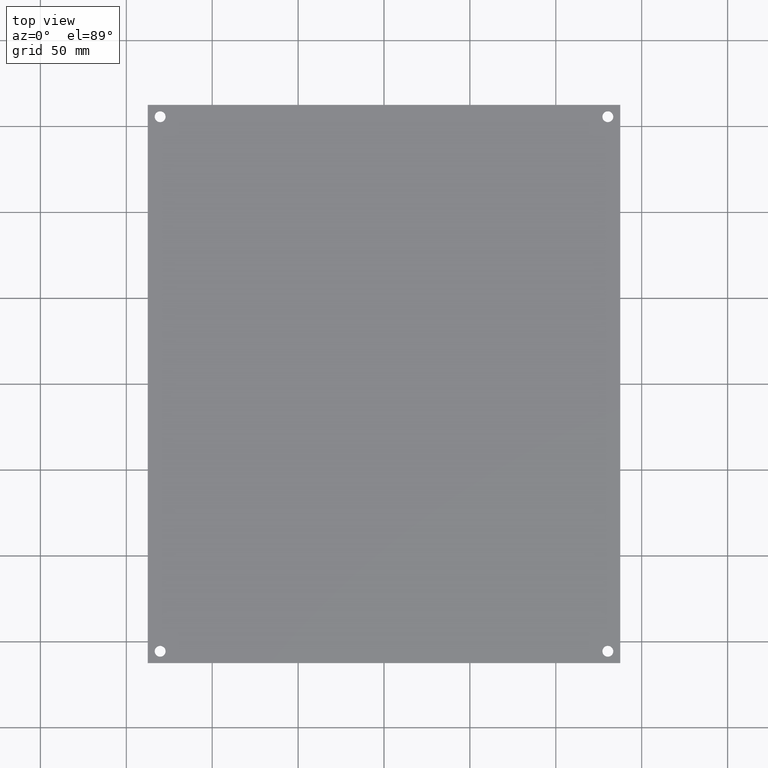
[diagram: clean part render]
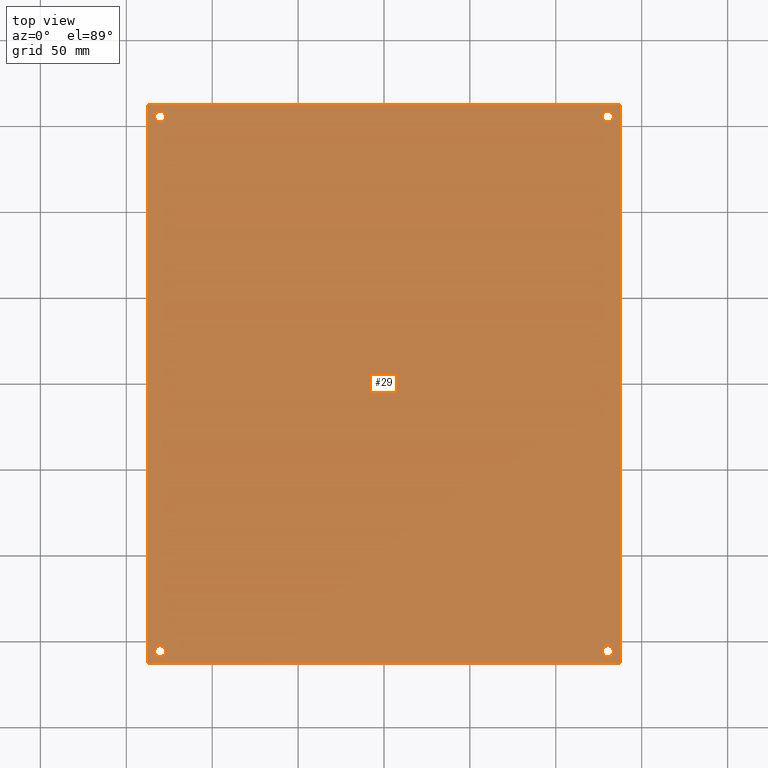
[diagram: same view with one face highlighted and labeled with its STEP entity id]
A machine part, top view. The second image highlights one B-rep face of the part: STEP entity #29.
In plain terms, the highlighted planar face has unit normal (-0, 0, 1).
Its self-contained STEP definition (entity closure, byte-faithful):
#1 = EDGE_CURVE ( 'NONE', #2, #3, #235, .T. ) ;
#2 = VERTEX_POINT ( 'NONE', #230 ) ;
#3 = VERTEX_POINT ( 'NONE', #229 ) ;
#7 = VERTEX_POINT ( 'NONE', #94 ) ;
#12 = VERTEX_POINT ( 'NONE', #84 ) ;
#15 = EDGE_CURVE ( 'NONE', #12, #7, #79, .T. ) ;
#28 = ORIENTED_EDGE ( 'NONE', *, *, #62, .F. ) ;
#29 = ADVANCED_FACE ( 'NONE', ( #182, #181, #180, #179, #178 ), #177, .T. ) ;
#30 = EDGE_LOOP ( 'NONE', ( #28, #66 ) ) ;
#31 = ORIENTED_EDGE ( 'NONE', *, *, #34, .T. ) ;
#32 = EDGE_CURVE ( 'NONE', #7, #12, #171, .T. ) ;
#33 = EDGE_CURVE ( 'NONE', #64, #63, #324, .T. ) ;
#34 = EDGE_CURVE ( 'NONE', #71, #74, #320, .T. ) ;
#35 = VERTEX_POINT ( 'NONE', #316 ) ;
#47 = EDGE_CURVE ( 'NONE', #48, #49, #228, .T. ) ;
#48 = VERTEX_POINT ( 'NONE', #223 ) ;
#49 = VERTEX_POINT ( 'NONE', #222 ) ;
#62 = EDGE_CURVE ( 'NONE', #63, #64, #113, .T. ) ;
#63 = VERTEX_POINT ( 'NONE', #103 ) ;
#64 = VERTEX_POINT ( 'NONE', #102 ) ;
#66 = ORIENTED_EDGE ( 'NONE', *, *, #33, .F. ) ;
#67 = ORIENTED_EDGE ( 'NONE', *, *, #154, .T. ) ;
#68 = EDGE_CURVE ( 'NONE', #35, #71, #101, .T. ) ;
#69 = ORIENTED_EDGE ( 'NONE', *, *, #15, .F. ) ;
#70 = EDGE_LOOP ( 'NONE', ( #69, #73 ) ) ;
#71 = VERTEX_POINT ( 'NONE', #360 ) ;
#72 = EDGE_LOOP ( 'NONE', ( #67, #144, #31, #145 ) ) ;
#73 = ORIENTED_EDGE ( 'NONE', *, *, #32, .F. ) ;
#74 = VERTEX_POINT ( 'NONE', #359 ) ;
#75 = DIRECTION ( 'NONE',  ( 1.000000000000000000, 0.0000000000000000000, 0.0000000000000000000 ) ) ;
#76 = DIRECTION ( 'NONE',  ( 0.0000000000000000000, 0.0000000000000000000, 1.000000000000000000 ) ) ;
#77 = CARTESIAN_POINT ( 'NONE',  ( -130.3000000000000100, 155.5999999999999900, 2.000000000000000000 ) ) ;
#78 = AXIS2_PLACEMENT_3D ( 'NONE', #77, #76, #75 ) ;
#79 = CIRCLE ( 'NONE', #78, 3.175000000000011400 ) ;
#84 = CARTESIAN_POINT ( 'NONE',  ( -133.4750000000000200, 155.5999999999999900, 2.000000000000000000 ) ) ;
#94 = CARTESIAN_POINT ( 'NONE',  ( -127.1249999999999900, 155.5999999999999900, 2.000000000000000000 ) ) ;
#100 = CARTESIAN_POINT ( 'NONE',  ( -137.5000000000000000, -162.5000000000000000, 2.000000000000000000 ) ) ;
#101 = LINE ( 'NONE', #100, #400 ) ;
#102 = CARTESIAN_POINT ( 'NONE',  ( 133.4750000000000200, -155.5999999999999900, 2.000000000000000000 ) ) ;
#103 = CARTESIAN_POINT ( 'NONE',  ( 127.1249999999999900, -155.5999999999999900, 2.000000000000000000 ) ) ;
#104 = DIRECTION ( 'NONE',  ( 1.000000000000000000, 0.0000000000000000000, 0.0000000000000000000 ) ) ;
#105 = DIRECTION ( 'NONE',  ( 0.0000000000000000000, 0.0000000000000000000, 1.000000000000000000 ) ) ;
#106 = CARTESIAN_POINT ( 'NONE',  ( 130.3000000000000100, -155.5999999999999900, 2.000000000000000000 ) ) ;
#107 = AXIS2_PLACEMENT_3D ( 'NONE', #106, #105, #104 ) ;
#113 = CIRCLE ( 'NONE', #107, 3.175000000000011400 ) ;
#144 = ORIENTED_EDGE ( 'NONE', *, *, #68, .T. ) ;
#145 = ORIENTED_EDGE ( 'NONE', *, *, #146, .T. ) ;
#146 = EDGE_CURVE ( 'NONE', #74, #153, #437, .T. ) ;
#147 = EDGE_LOOP ( 'NONE', ( #148, #149 ) ) ;
#148 = ORIENTED_EDGE ( 'NONE', *, *, #47, .F. ) ;
#149 = ORIENTED_EDGE ( 'NONE', *, *, #150, .F. ) ;
#150 = EDGE_CURVE ( 'NONE', #49, #48, #433, .T. ) ;
#151 = EDGE_LOOP ( 'NONE', ( #152, #155 ) ) ;
#152 = ORIENTED_EDGE ( 'NONE', *, *, #1, .F. ) ;
#153 = VERTEX_POINT ( 'NONE', #428 ) ;
#154 = EDGE_CURVE ( 'NONE', #153, #35, #427, .T. ) ;
#155 = ORIENTED_EDGE ( 'NONE', *, *, #156, .F. ) ;
#156 = EDGE_CURVE ( 'NONE', #3, #2, #423, .T. ) ;
#167 = DIRECTION ( 'NONE',  ( 1.000000000000000000, 0.0000000000000000000, 0.0000000000000000000 ) ) ;
#168 = DIRECTION ( 'NONE',  ( 0.0000000000000000000, 0.0000000000000000000, 1.000000000000000000 ) ) ;
#169 = CARTESIAN_POINT ( 'NONE',  ( -130.3000000000000100, 155.5999999999999900, 2.000000000000000000 ) ) ;
#170 = AXIS2_PLACEMENT_3D ( 'NONE', #169, #168, #167 ) ;
#171 = CIRCLE ( 'NONE', #170, 3.175000000000011400 ) ;
#172 = CARTESIAN_POINT ( 'NONE',  ( 130.3000000000000100, -155.5999999999999900, 2.000000000000000000 ) ) ;
#173 = DIRECTION ( 'NONE',  ( 1.000000000000000000, 0.0000000000000000000, 0.0000000000000000000 ) ) ;
#174 = DIRECTION ( 'NONE',  ( -0.0000000000000000000, 0.0000000000000000000, 1.000000000000000000 ) ) ;
#175 = CARTESIAN_POINT ( 'NONE',  ( -137.5000000000000000, -162.5000000000000000, 2.000000000000000000 ) ) ;
#176 = AXIS2_PLACEMENT_3D ( 'NONE', #175, #174, #173 ) ;
#177 = PLANE ( 'NONE',  #176 ) ;
#178 = FACE_BOUND ( 'NONE', #151, .T. ) ;
#179 = FACE_BOUND ( 'NONE', #147, .T. ) ;
#180 = FACE_OUTER_BOUND ( 'NONE', #72, .T. ) ;
#181 = FACE_BOUND ( 'NONE', #70, .T. ) ;
#182 = FACE_BOUND ( 'NONE', #30, .T. ) ;
#222 = CARTESIAN_POINT ( 'NONE',  ( 133.4750000000000200, 155.5999999999999900, 2.000000000000000000 ) ) ;
#223 = CARTESIAN_POINT ( 'NONE',  ( 127.1249999999999900, 155.5999999999999900, 2.000000000000000000 ) ) ;
#224 = DIRECTION ( 'NONE',  ( 1.000000000000000000, 0.0000000000000000000, 0.0000000000000000000 ) ) ;
#225 = DIRECTION ( 'NONE',  ( 0.0000000000000000000, 0.0000000000000000000, 1.000000000000000000 ) ) ;
#226 = CARTESIAN_POINT ( 'NONE',  ( 130.3000000000000100, 155.5999999999999900, 2.000000000000000000 ) ) ;
#227 = AXIS2_PLACEMENT_3D ( 'NONE', #226, #225, #224 ) ;
#228 = CIRCLE ( 'NONE', #227, 3.175000000000011400 ) ;
#229 = CARTESIAN_POINT ( 'NONE',  ( -127.1249999999999900, -155.5999999999999900, 2.000000000000000000 ) ) ;
#230 = CARTESIAN_POINT ( 'NONE',  ( -133.4750000000000200, -155.5999999999999900, 2.000000000000000000 ) ) ;
#231 = DIRECTION ( 'NONE',  ( 1.000000000000000000, 0.0000000000000000000, 0.0000000000000000000 ) ) ;
#232 = DIRECTION ( 'NONE',  ( 0.0000000000000000000, 0.0000000000000000000, 1.000000000000000000 ) ) ;
#233 = CARTESIAN_POINT ( 'NONE',  ( -130.3000000000000100, -155.5999999999999900, 2.000000000000000000 ) ) ;
#234 = AXIS2_PLACEMENT_3D ( 'NONE', #233, #232, #231 ) ;
#235 = CIRCLE ( 'NONE', #234, 3.175000000000011400 ) ;
#316 = CARTESIAN_POINT ( 'NONE',  ( -137.5000000000000000, -162.5000000000000000, 2.000000000000000000 ) ) ;
#317 = DIRECTION ( 'NONE',  ( -0.0000000000000000000, 1.000000000000000000, -0.0000000000000000000 ) ) ;
#318 = VECTOR ( 'NONE', #317, 1000.000000000000000 ) ;
#319 = CARTESIAN_POINT ( 'NONE',  ( 137.5000000000000000, 162.5000000000000000, 2.000000000000000000 ) ) ;
#320 = LINE ( 'NONE', #319, #318 ) ;
#321 = DIRECTION ( 'NONE',  ( 1.000000000000000000, 0.0000000000000000000, 0.0000000000000000000 ) ) ;
#322 = DIRECTION ( 'NONE',  ( 0.0000000000000000000, 0.0000000000000000000, 1.000000000000000000 ) ) ;
#323 = AXIS2_PLACEMENT_3D ( 'NONE', #172, #322, #321 ) ;
#324 = CIRCLE ( 'NONE', #323, 3.175000000000011400 ) ;
#359 = CARTESIAN_POINT ( 'NONE',  ( 137.5000000000000000, 162.5000000000000000, 2.000000000000000000 ) ) ;
#360 = CARTESIAN_POINT ( 'NONE',  ( 137.5000000000000000, -162.5000000000000000, 2.000000000000000000 ) ) ;
#381 = DIRECTION ( 'NONE',  ( 1.000000000000000000, 0.0000000000000000000, 0.0000000000000000000 ) ) ;
#400 = VECTOR ( 'NONE', #381, 1000.000000000000000 ) ;
#419 = DIRECTION ( 'NONE',  ( 1.000000000000000000, 0.0000000000000000000, 0.0000000000000000000 ) ) ;
#420 = DIRECTION ( 'NONE',  ( 0.0000000000000000000, 0.0000000000000000000, 1.000000000000000000 ) ) ;
#421 = CARTESIAN_POINT ( 'NONE',  ( -130.3000000000000100, -155.5999999999999900, 2.000000000000000000 ) ) ;
#422 = AXIS2_PLACEMENT_3D ( 'NONE', #421, #420, #419 ) ;
#423 = CIRCLE ( 'NONE', #422, 3.175000000000011400 ) ;
#424 = DIRECTION ( 'NONE',  ( 0.0000000000000000000, -1.000000000000000000, 0.0000000000000000000 ) ) ;
#425 = VECTOR ( 'NONE', #424, 1000.000000000000000 ) ;
#426 = CARTESIAN_POINT ( 'NONE',  ( -137.5000000000000000, 162.5000000000000000, 2.000000000000000000 ) ) ;
#427 = LINE ( 'NONE', #426, #425 ) ;
#428 = CARTESIAN_POINT ( 'NONE',  ( -137.5000000000000000, 162.5000000000000000, 2.000000000000000000 ) ) ;
#429 = DIRECTION ( 'NONE',  ( 1.000000000000000000, 0.0000000000000000000, 0.0000000000000000000 ) ) ;
#430 = DIRECTION ( 'NONE',  ( 0.0000000000000000000, 0.0000000000000000000, 1.000000000000000000 ) ) ;
#431 = CARTESIAN_POINT ( 'NONE',  ( 130.3000000000000100, 155.5999999999999900, 2.000000000000000000 ) ) ;
#432 = AXIS2_PLACEMENT_3D ( 'NONE', #431, #430, #429 ) ;
#433 = CIRCLE ( 'NONE', #432, 3.175000000000011400 ) ;
#434 = DIRECTION ( 'NONE',  ( -1.000000000000000000, -0.0000000000000000000, -0.0000000000000000000 ) ) ;
#435 = VECTOR ( 'NONE', #434, 1000.000000000000000 ) ;
#436 = CARTESIAN_POINT ( 'NONE',  ( -137.5000000000000000, 162.5000000000000000, 2.000000000000000000 ) ) ;
#437 = LINE ( 'NONE', #436, #435 ) ;